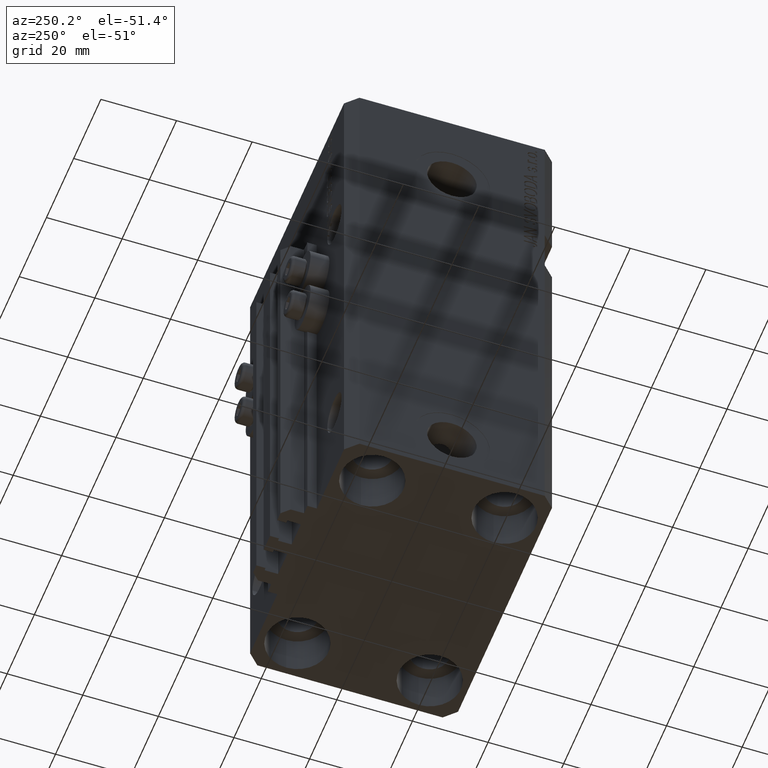
[diagram: clean part render]
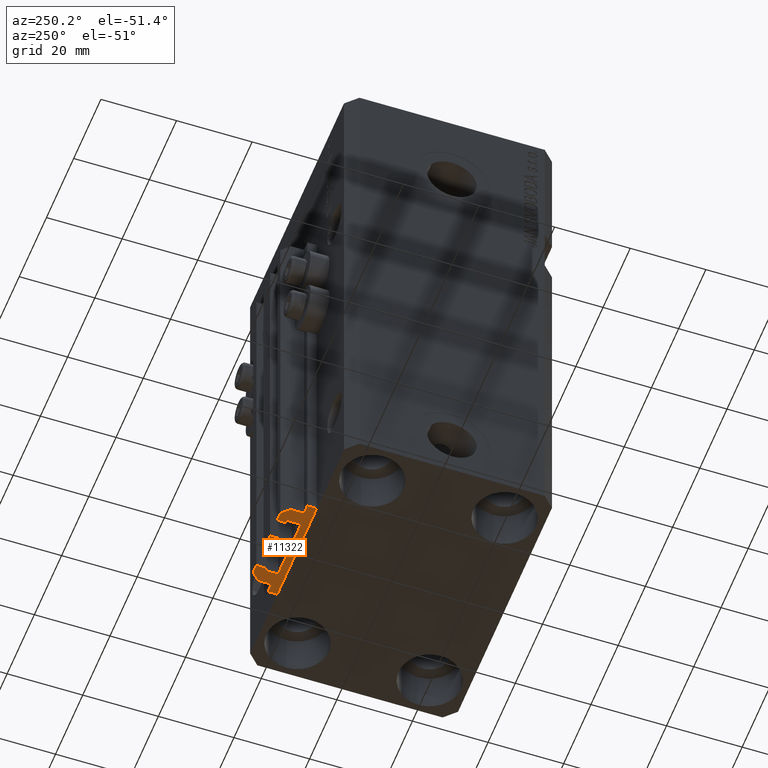
[diagram: same view with one face highlighted and labeled with its STEP entity id]
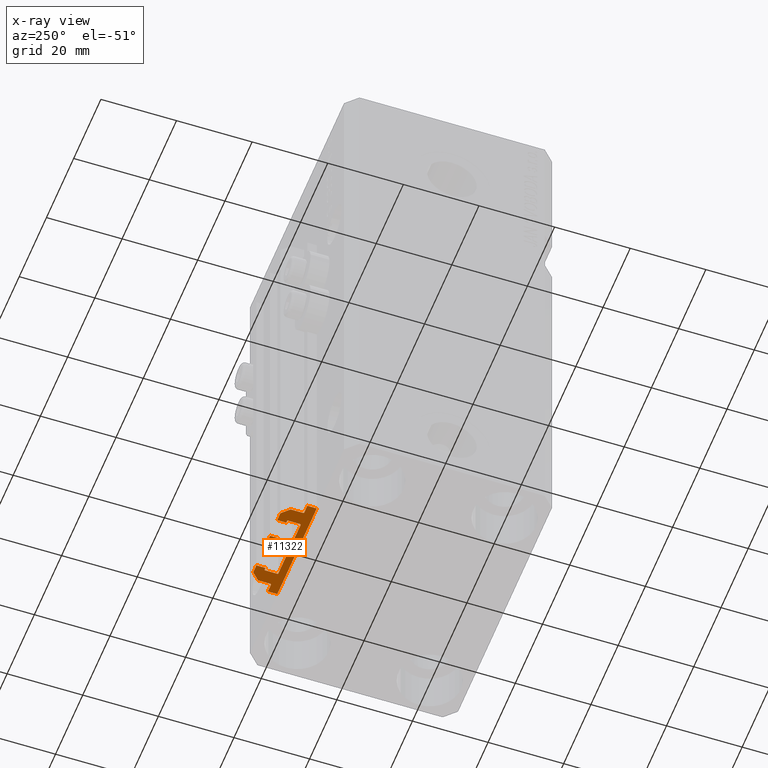
[diagram: x-ray of the same camera — body ghosted, the highlighted face saturated]
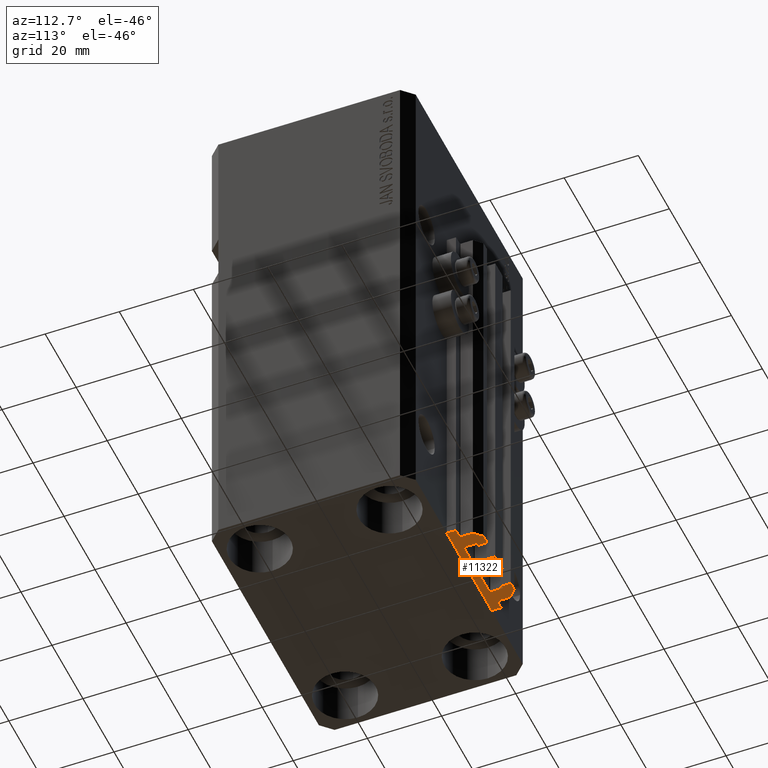
[diagram: same view with one face highlighted and labeled with its STEP entity id]
A machine part, auxiliary view. The second image highlights one B-rep face of the part: STEP entity #11322.
The next image is the same camera in x-ray: the body ghosted, the highlighted face saturated — about 0% of this face is hidden behind the body in this view.
A second angle (auxiliary view) of the same face is appended — the face is thin or edge-on in the first view.
In plain terms, the highlighted planar face has unit normal (0, 0, 1).
Its self-contained STEP definition (entity closure, byte-faithful):
#30 = EDGE_CURVE ( 'NONE', #15918, #10118, #40341, .T. ) ;
#35 = ORIENTED_EDGE ( 'NONE', *, *, #22844, .F. ) ;
#130 = EDGE_CURVE ( 'NONE', #33979, #6905, #12472, .T. ) ;
#262 = VECTOR ( 'NONE', #21419, 1000.000000000000000 ) ;
#331 = ORIENTED_EDGE ( 'NONE', *, *, #2328, .F. ) ;
#647 = CARTESIAN_POINT ( 'NONE',  ( -2.350000000000003197, 33.10000000000000853, -138.0000000000000000 ) ) ;
#849 = VECTOR ( 'NONE', #22634, 1000.000000000000000 ) ;
#981 = DIRECTION ( 'NONE',  ( 0.000000000000000000, 0.000000000000000000, 1.000000000000000000 ) ) ;
#1031 = CARTESIAN_POINT ( 'NONE',  ( 7.649999999999998579, 33.10000000000001563, -138.0000000000000000 ) ) ;
#1042 = ORIENTED_EDGE ( 'NONE', *, *, #43294, .F. ) ;
#1133 = CARTESIAN_POINT ( 'NONE',  ( 9.999999999999998224, 35.50000000000001421, -138.0000000000000000 ) ) ;
#1550 = DIRECTION ( 'NONE',  ( -1.000000000000000000, -1.084202172485504828E-15, 0.000000000000000000 ) ) ;
#1606 = VECTOR ( 'NONE', #1550, 1000.000000000000000 ) ;
#1836 = EDGE_CURVE ( 'NONE', #33979, #11816, #27214, .T. ) ;
#2014 = VERTEX_POINT ( 'NONE', #23114 ) ;
#2138 = CARTESIAN_POINT ( 'NONE',  ( -1.800000000000000933, 33.10000000000001563, -138.0000000000000000 ) ) ;
#2224 = DIRECTION ( 'NONE',  ( 0.000000000000000000, 0.000000000000000000, 1.000000000000000000 ) ) ;
#2319 = CARTESIAN_POINT ( 'NONE',  ( 14.49999999999999645, 30.00000000000002487, -138.0000000000000000 ) ) ;
#2328 = EDGE_CURVE ( 'NONE', #39824, #11816, #28129, .T. ) ;
#2616 = ORIENTED_EDGE ( 'NONE', *, *, #14590, .F. ) ;
#2665 = CARTESIAN_POINT ( 'NONE',  ( -1.800000000000000933, 29.69999999999999929, -138.0000000000000000 ) ) ;
#2736 = DIRECTION ( 'NONE',  ( -5.256737805990334897E-16, 1.000000000000000000, 0.000000000000000000 ) ) ;
#2864 = VERTEX_POINT ( 'NONE', #32335 ) ;
#2945 = CARTESIAN_POINT ( 'NONE',  ( 8.199999999999999289, 29.70000000000000284, -138.0000000000000000 ) ) ;
#2962 = CARTESIAN_POINT ( 'NONE',  ( -1.800000000000000933, 29.50000000000000355, -138.0000000000000000 ) ) ;
#3122 = DIRECTION ( 'NONE',  ( 1.000000000000000000, 0.000000000000000000, -0.000000000000000000 ) ) ;
#3164 = AXIS2_PLACEMENT_3D ( 'NONE', #2945, #2224, #17578 ) ;
#3188 = LINE ( 'NONE', #5838, #13609 ) ;
#3199 = EDGE_CURVE ( 'NONE', #40473, #16483, #36100, .T. ) ;
#3377 = DIRECTION ( 'NONE',  ( 0.000000000000000000, 0.000000000000000000, 1.000000000000000000 ) ) ;
#3572 = EDGE_CURVE ( 'NONE', #9593, #33468, #10809, .T. ) ;
#3647 = DIRECTION ( 'NONE',  ( -1.000000000000000000, 0.000000000000000000, 0.000000000000000000 ) ) ;
#3695 = CARTESIAN_POINT ( 'NONE',  ( -1.800000000000000933, 29.50000000000000355, -138.0000000000000000 ) ) ;
#3926 = EDGE_CURVE ( 'NONE', #9839, #17973, #43424, .T. ) ;
#3974 = EDGE_CURVE ( 'NONE', #7626, #25385, #38044, .T. ) ;
#4283 = ORIENTED_EDGE ( 'NONE', *, *, #13282, .F. ) ;
#4530 = EDGE_LOOP ( 'NONE', ( #15612, #35, #46338, #2616, #28452, #25399, #43526, #9129, #12908, #17840, #46388, #331, #27515, #1042, #39556, #27576, #7453, #46291, #34423, #19594, #16610, #34688, #40693, #24426, #25391, #44042, #16473, #11972, #37827, #4283, #40952, #43221, #38304, #40208, #9016, #16958 ) ) ;
#4565 = CARTESIAN_POINT ( 'NONE',  ( -12.00000000000000000, 33.49999999999998579, -138.0000000000000000 ) ) ;
#5138 = CARTESIAN_POINT ( 'NONE',  ( 2.349999999999999645, 35.50000000000001421, -138.0000000000000000 ) ) ;
#5168 = DIRECTION ( 'NONE',  ( 0.000000000000000000, -1.000000000000000000, 0.000000000000000000 ) ) ;
#5222 = DIRECTION ( 'NONE',  ( 1.000000000000000000, 0.000000000000000000, 0.000000000000000000 ) ) ;
#5272 = CARTESIAN_POINT ( 'NONE',  ( -8.399999999999996803, 29.69999999999999929, -138.0000000000000000 ) ) ;
#5649 = VECTOR ( 'NONE', #19845, 1000.000000000000000 ) ;
#5838 = CARTESIAN_POINT ( 'NONE',  ( -2.350000000000003642, 35.50000000000001421, -138.0000000000000000 ) ) ;
#5852 = DIRECTION ( 'NONE',  ( 1.000000000000000000, 0.000000000000000000, 0.000000000000000000 ) ) ;
#5928 = CARTESIAN_POINT ( 'NONE',  ( 14.49999999999999645, 27.50000000000000355, -138.0000000000000000 ) ) ;
#6072 = DIRECTION ( 'NONE',  ( 0.000000000000000000, 0.000000000000000000, 1.000000000000000000 ) ) ;
#6121 = VERTEX_POINT ( 'NONE', #32103 ) ;
#6183 = EDGE_CURVE ( 'NONE', #40473, #20447, #16407, .T. ) ;
#6249 = VERTEX_POINT ( 'NONE', #18327 ) ;
#6270 = DIRECTION ( 'NONE',  ( 1.000000000000000000, 0.000000000000000000, 0.000000000000000000 ) ) ;
#6343 = VERTEX_POINT ( 'NONE', #7528 ) ;
#6544 = CARTESIAN_POINT ( 'NONE',  ( 1.800000000000000933, 29.50000000000000000, -138.0000000000000000 ) ) ;
#6615 = CARTESIAN_POINT ( 'NONE',  ( -14.50000000000000000, 29.99999999999999289, -138.0000000000000000 ) ) ;
#6730 = DIRECTION ( 'NONE',  ( 0.000000000000000000, 1.000000000000000000, 0.000000000000000000 ) ) ;
#6905 = VERTEX_POINT ( 'NONE', #39307 ) ;
#7192 = CARTESIAN_POINT ( 'NONE',  ( -1.600000000000000755, 29.69999999999999929, -138.0000000000000000 ) ) ;
#7453 = ORIENTED_EDGE ( 'NONE', *, *, #24433, .F. ) ;
#7502 = EDGE_CURVE ( 'NONE', #9593, #9063, #42089, .T. ) ;
#7528 = CARTESIAN_POINT ( 'NONE',  ( -8.199999999999997513, 33.09999999999998721, -138.0000000000000000 ) ) ;
#7548 = CARTESIAN_POINT ( 'NONE',  ( -2.350000000000003197, 33.10000000000000853, -138.0000000000000000 ) ) ;
#7626 = VERTEX_POINT ( 'NONE', #30211 ) ;
#7758 = CARTESIAN_POINT ( 'NONE',  ( 7.649999999999998579, 35.50000000000001421, -138.0000000000000000 ) ) ;
#7778 = LINE ( 'NONE', #14750, #849 ) ;
#7943 = VECTOR ( 'NONE', #42625, 1000.000000000000000 ) ;
#7972 = CARTESIAN_POINT ( 'NONE',  ( 1.800000000000000933, 29.69999999999999929, -138.0000000000000000 ) ) ;
#8054 = CARTESIAN_POINT ( 'NONE',  ( -7.650000000000000355, 33.09999999999999432, -138.0000000000000000 ) ) ;
#8086 = DIRECTION ( 'NONE',  ( 1.000000000000000000, 0.000000000000000000, 0.000000000000000000 ) ) ;
#8452 = EDGE_CURVE ( 'NONE', #46171, #32216, #37495, .T. ) ;
#8495 = EDGE_CURVE ( 'NONE', #6121, #25385, #7778, .T. ) ;
#8576 = VECTOR ( 'NONE', #5852, 1000.000000000000000 ) ;
#8843 = VECTOR ( 'NONE', #32203, 1000.000000000000000 ) ;
#9016 = ORIENTED_EDGE ( 'NONE', *, *, #13389, .F. ) ;
#9063 = VERTEX_POINT ( 'NONE', #6544 ) ;
#9129 = ORIENTED_EDGE ( 'NONE', *, *, #22960, .F. ) ;
#9593 = VERTEX_POINT ( 'NONE', #26743 ) ;
#9839 = VERTEX_POINT ( 'NONE', #23093 ) ;
#10105 = DIRECTION ( 'NONE',  ( 0.000000000000000000, 0.000000000000000000, 1.000000000000000000 ) ) ;
#10118 = VERTEX_POINT ( 'NONE', #36981 ) ;
#10349 = VECTOR ( 'NONE', #15671, 1000.000000000000000 ) ;
#10486 = LINE ( 'NONE', #13619, #37190 ) ;
#10653 = DIRECTION ( 'NONE',  ( -5.421010862427496532E-16, -1.000000000000000000, 0.000000000000000000 ) ) ;
#10751 = VERTEX_POINT ( 'NONE', #19867 ) ;
#10809 = CIRCLE ( 'NONE', #3164, 0.1999999999999987899 ) ;
#11075 = VECTOR ( 'NONE', #16961, 1000.000000000000000 ) ;
#11079 = VECTOR ( 'NONE', #42198, 1000.000000000000000 ) ;
#11144 = DIRECTION ( 'NONE',  ( 1.000000000000000000, 1.261617073437673039E-14, 0.000000000000000000 ) ) ;
#11322 = ADVANCED_FACE ( 'NONE', ( #33097 ), #36473, .F. ) ;
#11782 = CARTESIAN_POINT ( 'NONE',  ( -12.20000000000000107, 30.19999999999999218, -138.0000000000000000 ) ) ;
#11809 = CIRCLE ( 'NONE', #33260, 0.2000000000000031197 ) ;
#11816 = VERTEX_POINT ( 'NONE', #27128 ) ;
#11972 = ORIENTED_EDGE ( 'NONE', *, *, #19135, .F. ) ;
#12004 = CIRCLE ( 'NONE', #36550, 0.2000000000000005107 ) ;
#12078 = AXIS2_PLACEMENT_3D ( 'NONE', #2665, #32150, #35758 ) ;
#12472 = LINE ( 'NONE', #5272, #11079 ) ;
#12529 = VERTEX_POINT ( 'NONE', #44045 ) ;
#12603 = VECTOR ( 'NONE', #26661, 1000.000000000000000 ) ;
#12846 = CIRCLE ( 'NONE', #12078, 0.1999999999999994282 ) ;
#12877 = VECTOR ( 'NONE', #10653, 1000.000000000000000 ) ;
#12908 = ORIENTED_EDGE ( 'NONE', *, *, #23544, .T. ) ;
#13282 = EDGE_CURVE ( 'NONE', #10751, #33056, #23197, .T. ) ;
#13389 = EDGE_CURVE ( 'NONE', #43579, #45939, #17676, .T. ) ;
#13609 = VECTOR ( 'NONE', #21430, 1000.000000000000000 ) ;
#13619 = CARTESIAN_POINT ( 'NONE',  ( -10.00000000000000000, 35.50000000000000000, -138.0000000000000000 ) ) ;
#14145 = CARTESIAN_POINT ( 'NONE',  ( -8.399999999999996803, 29.69999999999999929, -138.0000000000000000 ) ) ;
#14319 = EDGE_CURVE ( 'NONE', #29005, #32216, #11809, .T. ) ;
#14590 = EDGE_CURVE ( 'NONE', #34929, #12529, #31045, .T. ) ;
#14619 = CARTESIAN_POINT ( 'NONE',  ( 7.649999999999998579, 35.50000000000001421, -138.0000000000000000 ) ) ;
#14643 = CARTESIAN_POINT ( 'NONE',  ( 12.20000000000000107, 30.20000000000002061, -138.0000000000000000 ) ) ;
#14711 = CARTESIAN_POINT ( 'NONE',  ( 12.00000000000000000, 33.50000000000001421, -138.0000000000000000 ) ) ;
#14750 = CARTESIAN_POINT ( 'NONE',  ( 2.349999999999999645, 33.10000000000000853, -138.0000000000000000 ) ) ;
#15278 = EDGE_CURVE ( 'NONE', #33056, #2864, #44677, .T. ) ;
#15612 = ORIENTED_EDGE ( 'NONE', *, *, #27936, .F. ) ;
#15671 = DIRECTION ( 'NONE',  ( 1.000000000000000000, -1.261617073437673828E-14, 0.000000000000000000 ) ) ;
#15750 = CARTESIAN_POINT ( 'NONE',  ( -8.199999999999997513, 29.69999999999999929, -138.0000000000000000 ) ) ;
#15812 = EDGE_CURVE ( 'NONE', #45939, #16483, #35174, .T. ) ;
#15918 = VERTEX_POINT ( 'NONE', #8054 ) ;
#16348 = CARTESIAN_POINT ( 'NONE',  ( 8.399999999999998579, 32.90000000000001990, -138.0000000000000000 ) ) ;
#16407 = LINE ( 'NONE', #34866, #29889 ) ;
#16473 = ORIENTED_EDGE ( 'NONE', *, *, #44109, .T. ) ;
#16478 = AXIS2_PLACEMENT_3D ( 'NONE', #15750, #3377, #8086 ) ;
#16483 = VERTEX_POINT ( 'NONE', #39077 ) ;
#16610 = ORIENTED_EDGE ( 'NONE', *, *, #17826, .T. ) ;
#16929 = DIRECTION ( 'NONE',  ( 1.000000000000000000, 0.000000000000000000, 0.000000000000000000 ) ) ;
#16958 = ORIENTED_EDGE ( 'NONE', *, *, #34320, .F. ) ;
#16961 = DIRECTION ( 'NONE',  ( -1.000000000000000000, 0.000000000000000000, 0.000000000000000000 ) ) ;
#17578 = DIRECTION ( 'NONE',  ( 1.000000000000000000, 0.000000000000000000, 0.000000000000000000 ) ) ;
#17676 = LINE ( 'NONE', #5928, #7943 ) ;
#17734 = EDGE_CURVE ( 'NONE', #42028, #34929, #10486, .T. ) ;
#17790 = LINE ( 'NONE', #25453, #33798 ) ;
#17826 = EDGE_CURVE ( 'NONE', #2014, #17973, #40916, .T. ) ;
#17840 = ORIENTED_EDGE ( 'NONE', *, *, #130, .F. ) ;
#17847 = CARTESIAN_POINT ( 'NONE',  ( 8.400000000000000355, 32.90000000000001990, -138.0000000000000000 ) ) ;
#17973 = VERTEX_POINT ( 'NONE', #46578 ) ;
#18327 = CARTESIAN_POINT ( 'NONE',  ( -14.50000000000000000, 27.50000000000000355, -138.0000000000000000 ) ) ;
#18745 = CIRCLE ( 'NONE', #20287, 0.1999999999999970690 ) ;
#18782 = CARTESIAN_POINT ( 'NONE',  ( 8.200000000000001066, 33.10000000000000853, -138.0000000000000000 ) ) ;
#19135 = EDGE_CURVE ( 'NONE', #2864, #31808, #33885, .T. ) ;
#19191 = CARTESIAN_POINT ( 'NONE',  ( -7.650000000000000355, 33.09999999999999432, -138.0000000000000000 ) ) ;
#19242 = VECTOR ( 'NONE', #6730, 1000.000000000000000 ) ;
#19594 = ORIENTED_EDGE ( 'NONE', *, *, #37486, .F. ) ;
#19845 = DIRECTION ( 'NONE',  ( -1.000000000000000000, 0.000000000000000000, 0.000000000000000000 ) ) ;
#19867 = CARTESIAN_POINT ( 'NONE',  ( 9.999999999999998224, 35.50000000000001421, -138.0000000000000000 ) ) ;
#20241 = LINE ( 'NONE', #35339, #8576 ) ;
#20287 = AXIS2_PLACEMENT_3D ( 'NONE', #32439, #6072, #25019 ) ;
#20447 = VERTEX_POINT ( 'NONE', #46742 ) ;
#20923 = CARTESIAN_POINT ( 'NONE',  ( -14.50000000000000000, 29.99999999999999289, -138.0000000000000000 ) ) ;
#21123 = DIRECTION ( 'NONE',  ( 1.000000000000000000, 0.000000000000000000, 0.000000000000000000 ) ) ;
#21186 = LINE ( 'NONE', #35794, #24882 ) ;
#21361 = CARTESIAN_POINT ( 'NONE',  ( 1.600000000000000533, 29.69999999999999929, -138.0000000000000000 ) ) ;
#21417 = DIRECTION ( 'NONE',  ( -6.776263578034378061E-17, -1.000000000000000000, 0.000000000000000000 ) ) ;
#21419 = DIRECTION ( 'NONE',  ( 1.000000000000000000, -1.261617073437681085E-14, 0.000000000000000000 ) ) ;
#21430 = DIRECTION ( 'NONE',  ( 1.807003620809174632E-16, -1.000000000000000000, 0.000000000000000000 ) ) ;
#21438 = VERTEX_POINT ( 'NONE', #16348 ) ;
#21880 = DIRECTION ( 'NONE',  ( 0.000000000000000000, 1.000000000000000000, 0.000000000000000000 ) ) ;
#22002 = VECTOR ( 'NONE', #37840, 1000.000000000000000 ) ;
#22205 = CARTESIAN_POINT ( 'NONE',  ( -12.20000000000000107, 29.99999999999998934, -138.0000000000000000 ) ) ;
#22222 = CARTESIAN_POINT ( 'NONE',  ( 8.400000000000000355, 29.70000000000000284, -138.0000000000000000 ) ) ;
#22296 = CARTESIAN_POINT ( 'NONE',  ( 14.49999999999999645, 30.00000000000002487, -138.0000000000000000 ) ) ;
#22604 = DIRECTION ( 'NONE',  ( 0.000000000000000000, 0.000000000000000000, 1.000000000000000000 ) ) ;
#22634 = DIRECTION ( 'NONE',  ( 0.000000000000000000, 1.000000000000000000, 0.000000000000000000 ) ) ;
#22844 = EDGE_CURVE ( 'NONE', #40292, #43071, #47476, .T. ) ;
#22960 = EDGE_CURVE ( 'NONE', #6343, #15918, #23454, .T. ) ;
#23093 = CARTESIAN_POINT ( 'NONE',  ( 1.599999999999999645, 29.69999999999999929, -138.0000000000000000 ) ) ;
#23114 = CARTESIAN_POINT ( 'NONE',  ( 1.800000000000000933, 33.10000000000001563, -138.0000000000000000 ) ) ;
#23197 = LINE ( 'NONE', #1133, #5649 ) ;
#23208 = CARTESIAN_POINT ( 'NONE',  ( -8.199999999999997513, 33.09999999999998721, -138.0000000000000000 ) ) ;
#23454 = LINE ( 'NONE', #23208, #22002 ) ;
#23544 = EDGE_CURVE ( 'NONE', #6343, #6905, #12004, .T. ) ;
#24426 = ORIENTED_EDGE ( 'NONE', *, *, #7502, .F. ) ;
#24433 = EDGE_CURVE ( 'NONE', #7626, #46171, #3188, .T. ) ;
#24665 = EDGE_CURVE ( 'NONE', #20447, #10751, #47329, .T. ) ;
#24803 = LINE ( 'NONE', #17847, #12877 ) ;
#24882 = VECTOR ( 'NONE', #21417, 1000.000000000000000 ) ;
#25019 = DIRECTION ( 'NONE',  ( 1.000000000000000000, 0.000000000000000000, 0.000000000000000000 ) ) ;
#25385 = VERTEX_POINT ( 'NONE', #5138 ) ;
#25391 = ORIENTED_EDGE ( 'NONE', *, *, #3572, .T. ) ;
#25399 = ORIENTED_EDGE ( 'NONE', *, *, #32901, .F. ) ;
#25453 = CARTESIAN_POINT ( 'NONE',  ( -7.650000000000000355, 35.50000000000000000, -138.0000000000000000 ) ) ;
#25617 = EDGE_CURVE ( 'NONE', #9839, #9063, #46529, .T. ) ;
#25633 = VECTOR ( 'NONE', #21880, 1000.000000000000000 ) ;
#25810 = EDGE_CURVE ( 'NONE', #39824, #33967, #12846, .T. ) ;
#25828 = VECTOR ( 'NONE', #29078, 1000.000000000000114 ) ;
#25954 = DIRECTION ( 'NONE',  ( 1.000000000000000000, 0.000000000000000000, 0.000000000000000000 ) ) ;
#26130 = VECTOR ( 'NONE', #16929, 1000.000000000000000 ) ;
#26585 = EDGE_CURVE ( 'NONE', #21438, #33468, #24803, .T. ) ;
#26661 = DIRECTION ( 'NONE',  ( 0.000000000000000000, -1.000000000000000000, 0.000000000000000000 ) ) ;
#26743 = CARTESIAN_POINT ( 'NONE',  ( 8.199999999999999289, 29.50000000000000711, -138.0000000000000000 ) ) ;
#27128 = CARTESIAN_POINT ( 'NONE',  ( -8.199999999999997513, 29.50000000000000355, -138.0000000000000000 ) ) ;
#27149 = CARTESIAN_POINT ( 'NONE',  ( 1.800000000000000933, 32.90000000000001279, -138.0000000000000000 ) ) ;
#27214 = CIRCLE ( 'NONE', #16478, 0.1999999999999987899 ) ;
#27515 = ORIENTED_EDGE ( 'NONE', *, *, #25810, .T. ) ;
#27576 = ORIENTED_EDGE ( 'NONE', *, *, #8452, .F. ) ;
#27936 = EDGE_CURVE ( 'NONE', #43071, #6249, #32667, .T. ) ;
#28129 = LINE ( 'NONE', #2962, #8843 ) ;
#28449 = CARTESIAN_POINT ( 'NONE',  ( 12.00000000000000178, 30.20000000000002061, -138.0000000000000000 ) ) ;
#28452 = ORIENTED_EDGE ( 'NONE', *, *, #17734, .F. ) ;
#28546 = CARTESIAN_POINT ( 'NONE',  ( 12.20000000000000107, 30.20000000000002061, -138.0000000000000000 ) ) ;
#28759 = CARTESIAN_POINT ( 'NONE',  ( -12.20000000000000107, 29.99999999999998934, -138.0000000000000000 ) ) ;
#29005 = VERTEX_POINT ( 'NONE', #42405 ) ;
#29011 = CARTESIAN_POINT ( 'NONE',  ( -8.199999999999997513, 32.89999999999999147, -138.0000000000000000 ) ) ;
#29078 = DIRECTION ( 'NONE',  ( -0.7071067811865474617, 0.7071067811865474617, 0.000000000000000000 ) ) ;
#29089 = DIRECTION ( 'NONE',  ( 1.000000000000000000, 0.000000000000000000, 0.000000000000000000 ) ) ;
#29889 = VECTOR ( 'NONE', #2736, 1000.000000000000000 ) ;
#30211 = CARTESIAN_POINT ( 'NONE',  ( -2.350000000000003642, 35.50000000000001421, -138.0000000000000000 ) ) ;
#30729 = AXIS2_PLACEMENT_3D ( 'NONE', #28546, #10105, #6270 ) ;
#31045 = LINE ( 'NONE', #41616, #39376 ) ;
#31808 = VERTEX_POINT ( 'NONE', #18782 ) ;
#32103 = CARTESIAN_POINT ( 'NONE',  ( 2.349999999999999645, 33.10000000000000853, -138.0000000000000000 ) ) ;
#32150 = DIRECTION ( 'NONE',  ( 0.000000000000000000, 0.000000000000000000, 1.000000000000000000 ) ) ;
#32203 = DIRECTION ( 'NONE',  ( -1.000000000000000000, 0.000000000000000000, 0.000000000000000000 ) ) ;
#32216 = VERTEX_POINT ( 'NONE', #2138 ) ;
#32313 = CARTESIAN_POINT ( 'NONE',  ( 14.49999999999999645, 27.50000000000000355, -138.0000000000000000 ) ) ;
#32314 = CARTESIAN_POINT ( 'NONE',  ( -10.00000000000000000, 35.50000000000000000, -138.0000000000000000 ) ) ;
#32335 = CARTESIAN_POINT ( 'NONE',  ( 7.649999999999998579, 33.10000000000001563, -138.0000000000000000 ) ) ;
#32439 = CARTESIAN_POINT ( 'NONE',  ( 8.200000000000001066, 32.90000000000001990, -138.0000000000000000 ) ) ;
#32667 = LINE ( 'NONE', #20923, #46628 ) ;
#32901 = EDGE_CURVE ( 'NONE', #10118, #42028, #17790, .T. ) ;
#33015 = DIRECTION ( 'NONE',  ( 1.000000000000000000, 0.000000000000000000, 0.000000000000000000 ) ) ;
#33056 = VERTEX_POINT ( 'NONE', #14619 ) ;
#33057 = VECTOR ( 'NONE', #11144, 1000.000000000000000 ) ;
#33097 = FACE_OUTER_BOUND ( 'NONE', #4530, .T. ) ;
#33260 = AXIS2_PLACEMENT_3D ( 'NONE', #45273, #38080, #5222 ) ;
#33468 = VERTEX_POINT ( 'NONE', #22222 ) ;
#33798 = VECTOR ( 'NONE', #3647, 1000.000000000000000 ) ;
#33885 = LINE ( 'NONE', #1031, #10349 ) ;
#33967 = VERTEX_POINT ( 'NONE', #7192 ) ;
#33979 = VERTEX_POINT ( 'NONE', #14145 ) ;
#34320 = EDGE_CURVE ( 'NONE', #6249, #43579, #20241, .T. ) ;
#34423 = ORIENTED_EDGE ( 'NONE', *, *, #8495, .F. ) ;
#34688 = ORIENTED_EDGE ( 'NONE', *, *, #3926, .F. ) ;
#34779 = AXIS2_PLACEMENT_3D ( 'NONE', #11782, #981, #25954 ) ;
#34866 = CARTESIAN_POINT ( 'NONE',  ( 12.00000000000000178, 30.20000000000002061, -138.0000000000000000 ) ) ;
#34929 = VERTEX_POINT ( 'NONE', #4565 ) ;
#35174 = LINE ( 'NONE', #2319, #11075 ) ;
#35339 = CARTESIAN_POINT ( 'NONE',  ( -14.50000000000000000, 27.50000000000000355, -138.0000000000000000 ) ) ;
#35724 = DIRECTION ( 'NONE',  ( -1.000000000000000000, 1.508455196501571429E-15, 0.000000000000000000 ) ) ;
#35758 = DIRECTION ( 'NONE',  ( 1.000000000000000000, 0.000000000000000000, 0.000000000000000000 ) ) ;
#35794 = CARTESIAN_POINT ( 'NONE',  ( -1.600000000000000533, 32.90000000000001279, -138.0000000000000000 ) ) ;
#35901 = DIRECTION ( 'NONE',  ( -0.7071067811865460184, -0.7071067811865490160, 0.000000000000000000 ) ) ;
#36100 = CIRCLE ( 'NONE', #30729, 0.1999999999999987899 ) ;
#36380 = DIRECTION ( 'NONE',  ( 0.000000000000000000, 0.000000000000000000, 1.000000000000000000 ) ) ;
#36473 = PLANE ( 'NONE',  #37729 ) ;
#36550 = AXIS2_PLACEMENT_3D ( 'NONE', #29011, #39330, #21123 ) ;
#36981 = CARTESIAN_POINT ( 'NONE',  ( -7.650000000000000355, 35.50000000000000000, -138.0000000000000000 ) ) ;
#37190 = VECTOR ( 'NONE', #35901, 1000.000000000000227 ) ;
#37486 = EDGE_CURVE ( 'NONE', #2014, #6121, #42993, .T. ) ;
#37495 = LINE ( 'NONE', #7548, #33057 ) ;
#37729 = AXIS2_PLACEMENT_3D ( 'NONE', #14643, #40060, #3122 ) ;
#37827 = ORIENTED_EDGE ( 'NONE', *, *, #15278, .F. ) ;
#37840 = DIRECTION ( 'NONE',  ( 1.000000000000000000, 1.261617073437685503E-14, 0.000000000000000000 ) ) ;
#38044 = LINE ( 'NONE', #45230, #26130 ) ;
#38080 = DIRECTION ( 'NONE',  ( 0.000000000000000000, 0.000000000000000000, 1.000000000000000000 ) ) ;
#38304 = ORIENTED_EDGE ( 'NONE', *, *, #3199, .T. ) ;
#38483 = CARTESIAN_POINT ( 'NONE',  ( 8.199999999999999289, 29.50000000000000711, -138.0000000000000000 ) ) ;
#39077 = CARTESIAN_POINT ( 'NONE',  ( 12.20000000000000107, 30.00000000000002487, -138.0000000000000000 ) ) ;
#39307 = CARTESIAN_POINT ( 'NONE',  ( -8.400000000000000355, 32.89999999999999858, -138.0000000000000000 ) ) ;
#39330 = DIRECTION ( 'NONE',  ( 0.000000000000000000, 0.000000000000000000, 1.000000000000000000 ) ) ;
#39376 = VECTOR ( 'NONE', #5168, 1000.000000000000000 ) ;
#39395 = CARTESIAN_POINT ( 'NONE',  ( 1.800000000000000933, 33.10000000000001563, -138.0000000000000000 ) ) ;
#39556 = ORIENTED_EDGE ( 'NONE', *, *, #14319, .T. ) ;
#39824 = VERTEX_POINT ( 'NONE', #3695 ) ;
#40060 = DIRECTION ( 'NONE',  ( 0.000000000000000000, 0.000000000000000000, 1.000000000000000000 ) ) ;
#40208 = ORIENTED_EDGE ( 'NONE', *, *, #15812, .F. ) ;
#40292 = VERTEX_POINT ( 'NONE', #22205 ) ;
#40341 = LINE ( 'NONE', #19191, #25633 ) ;
#40418 = AXIS2_PLACEMENT_3D ( 'NONE', #7972, #22604, #29089 ) ;
#40473 = VERTEX_POINT ( 'NONE', #28449 ) ;
#40693 = ORIENTED_EDGE ( 'NONE', *, *, #25617, .T. ) ;
#40890 = CIRCLE ( 'NONE', #34779, 0.2000000000000005107 ) ;
#40916 = CIRCLE ( 'NONE', #47046, 0.2000000000000033418 ) ;
#40952 = ORIENTED_EDGE ( 'NONE', *, *, #24665, .F. ) ;
#41081 = VECTOR ( 'NONE', #35724, 1000.000000000000000 ) ;
#41616 = CARTESIAN_POINT ( 'NONE',  ( -12.00000000000000000, 33.49999999999998579, -138.0000000000000000 ) ) ;
#42028 = VERTEX_POINT ( 'NONE', #32314 ) ;
#42089 = LINE ( 'NONE', #38483, #1606 ) ;
#42198 = DIRECTION ( 'NONE',  ( -1.084202172485505223E-15, 1.000000000000000000, 0.000000000000000000 ) ) ;
#42355 = EDGE_CURVE ( 'NONE', #40292, #12529, #40890, .T. ) ;
#42405 = CARTESIAN_POINT ( 'NONE',  ( -1.599999999999997868, 32.90000000000001279, -138.0000000000000000 ) ) ;
#42625 = DIRECTION ( 'NONE',  ( 0.000000000000000000, 1.000000000000000000, 0.000000000000000000 ) ) ;
#42993 = LINE ( 'NONE', #39395, #262 ) ;
#43071 = VERTEX_POINT ( 'NONE', #6615 ) ;
#43221 = ORIENTED_EDGE ( 'NONE', *, *, #6183, .F. ) ;
#43294 = EDGE_CURVE ( 'NONE', #29005, #33967, #21186, .T. ) ;
#43424 = LINE ( 'NONE', #21361, #19242 ) ;
#43526 = ORIENTED_EDGE ( 'NONE', *, *, #30, .F. ) ;
#43579 = VERTEX_POINT ( 'NONE', #32313 ) ;
#44042 = ORIENTED_EDGE ( 'NONE', *, *, #26585, .F. ) ;
#44045 = CARTESIAN_POINT ( 'NONE',  ( -12.00000000000000000, 30.19999999999999218, -138.0000000000000000 ) ) ;
#44109 = EDGE_CURVE ( 'NONE', #21438, #31808, #18745, .T. ) ;
#44677 = LINE ( 'NONE', #7758, #12603 ) ;
#45230 = CARTESIAN_POINT ( 'NONE',  ( -2.350000000000003642, 35.50000000000001421, -138.0000000000000000 ) ) ;
#45273 = CARTESIAN_POINT ( 'NONE',  ( -1.800000000000000933, 32.90000000000001279, -138.0000000000000000 ) ) ;
#45939 = VERTEX_POINT ( 'NONE', #22296 ) ;
#46171 = VERTEX_POINT ( 'NONE', #647 ) ;
#46291 = ORIENTED_EDGE ( 'NONE', *, *, #3974, .T. ) ;
#46338 = ORIENTED_EDGE ( 'NONE', *, *, #42355, .T. ) ;
#46388 = ORIENTED_EDGE ( 'NONE', *, *, #1836, .T. ) ;
#46529 = CIRCLE ( 'NONE', #40418, 0.2000000000000016209 ) ;
#46578 = CARTESIAN_POINT ( 'NONE',  ( 1.600000000000000533, 32.90000000000001279, -138.0000000000000000 ) ) ;
#46628 = VECTOR ( 'NONE', #47055, 1000.000000000000000 ) ;
#46742 = CARTESIAN_POINT ( 'NONE',  ( 12.00000000000000000, 33.50000000000001421, -138.0000000000000000 ) ) ;
#47046 = AXIS2_PLACEMENT_3D ( 'NONE', #27149, #36380, #33015 ) ;
#47055 = DIRECTION ( 'NONE',  ( 0.000000000000000000, -1.000000000000000000, 0.000000000000000000 ) ) ;
#47329 = LINE ( 'NONE', #14711, #25828 ) ;
#47476 = LINE ( 'NONE', #28759, #41081 ) ;